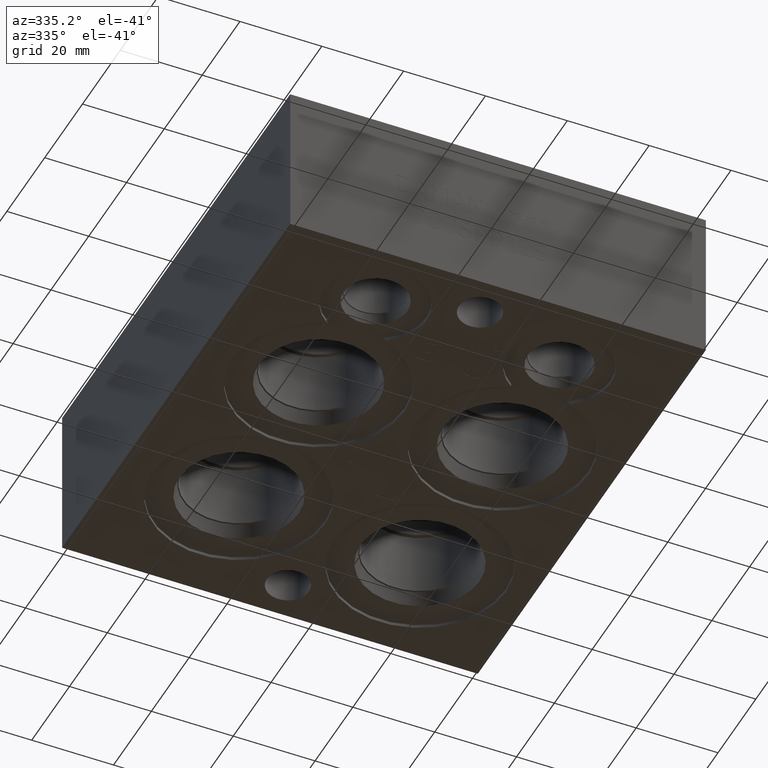
[diagram: clean part render]
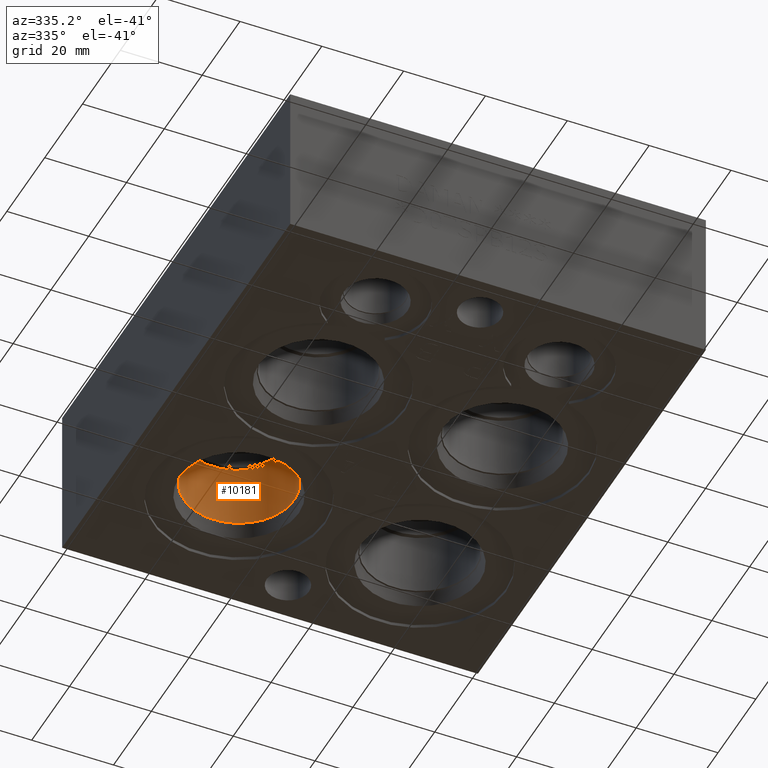
[diagram: same view with one face highlighted and labeled with its STEP entity id]
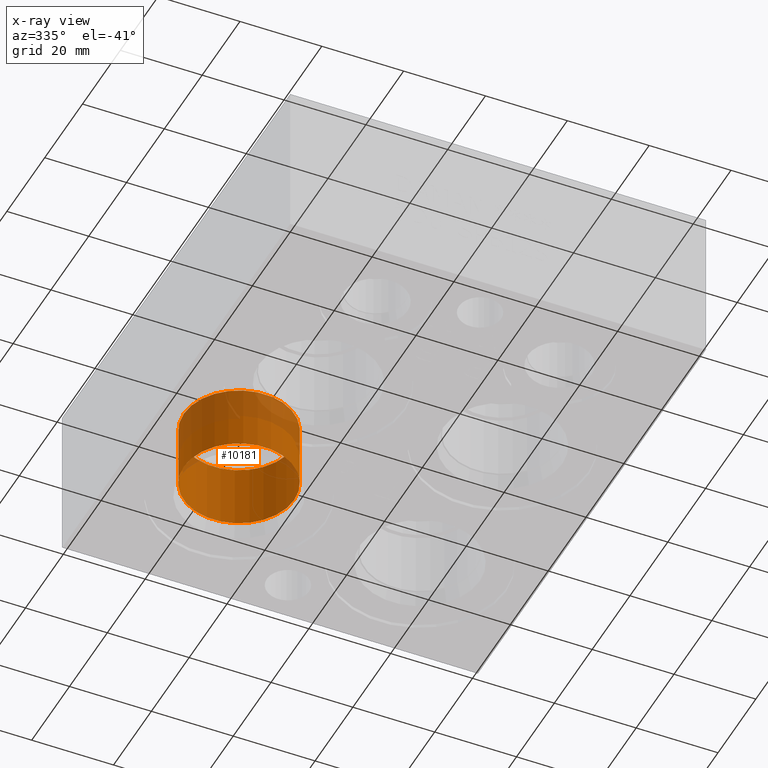
[diagram: x-ray of the same camera — body ghosted, the highlighted face saturated]
A machine part, auxiliary view. The second image highlights one B-rep face of the part: STEP entity #10181.
The next image is the same camera in x-ray: the body ghosted, the highlighted face saturated — about 28% of this face is hidden behind the body in this view.
In plain terms, the highlighted cylindrical surface (bore or boss wall) has radius 13.5001 mm, axis along (0, 0, -1).
Its self-contained STEP definition (entity closure, byte-faithful):
#62=CYLINDRICAL_SURFACE('',#10656,13.5001);
#249=CIRCLE('',#10618,13.5001);
#273=CIRCLE('',#10653,13.5001);
#274=CIRCLE('',#10654,13.5001);
#1167=FACE_OUTER_BOUND('',#1736,.T.);
#1736=EDGE_LOOP('',(#8555,#8556,#8557,#8558,#8559));
#2767=LINE('',#17146,#3747);
#3747=VECTOR('',#12527,13.5001);
#4597=VERTEX_POINT('',#16916);
#4629=VERTEX_POINT('',#17139);
#4630=VERTEX_POINT('',#17140);
#5940=EDGE_CURVE('',#4597,#4597,#249,.T.);
#5985=EDGE_CURVE('',#4629,#4630,#273,.T.);
#5986=EDGE_CURVE('',#4630,#4629,#274,.T.);
#5988=EDGE_CURVE('',#4597,#4630,#2767,.T.);
#8555=ORIENTED_EDGE('',*,*,#5940,.T.);
#8556=ORIENTED_EDGE('',*,*,#5988,.T.);
#8557=ORIENTED_EDGE('',*,*,#5985,.F.);
#8558=ORIENTED_EDGE('',*,*,#5986,.F.);
#8559=ORIENTED_EDGE('',*,*,#5988,.F.);
#10181=ADVANCED_FACE('',(#1167),#62,.F.);
#10618=AXIS2_PLACEMENT_3D('',#16918,#12439,#12440);
#10653=AXIS2_PLACEMENT_3D('',#17141,#12519,#12520);
#10654=AXIS2_PLACEMENT_3D('',#17142,#12521,#12522);
#10656=AXIS2_PLACEMENT_3D('',#17145,#12525,#12526);
#12439=DIRECTION('center_axis',(0.,0.,-1.));
#12440=DIRECTION('ref_axis',(1.,0.,0.));
#12519=DIRECTION('center_axis',(0.,0.,-1.));
#12520=DIRECTION('ref_axis',(1.,0.,0.));
#12521=DIRECTION('center_axis',(0.,0.,-1.));
#12522=DIRECTION('ref_axis',(1.,0.,0.));
#12525=DIRECTION('center_axis',(0.,0.,-1.));
#12526=DIRECTION('ref_axis',(1.,0.,0.));
#12527=DIRECTION('',(0.,0.,1.));
#16916=CARTESIAN_POINT('',(15.0749,88.9,4.2799));
#16918=CARTESIAN_POINT('Origin',(28.575,88.9,4.2799));
#17139=CARTESIAN_POINT('',(42.0751,88.9,19.8374));
#17140=CARTESIAN_POINT('',(15.0749,88.9,19.8374));
#17141=CARTESIAN_POINT('Origin',(28.575,88.9,19.8374));
#17142=CARTESIAN_POINT('Origin',(28.575,88.9,19.8374));
#17145=CARTESIAN_POINT('Origin',(28.575,88.9,9.9187));
#17146=CARTESIAN_POINT('',(15.0749,88.9,9.9187));